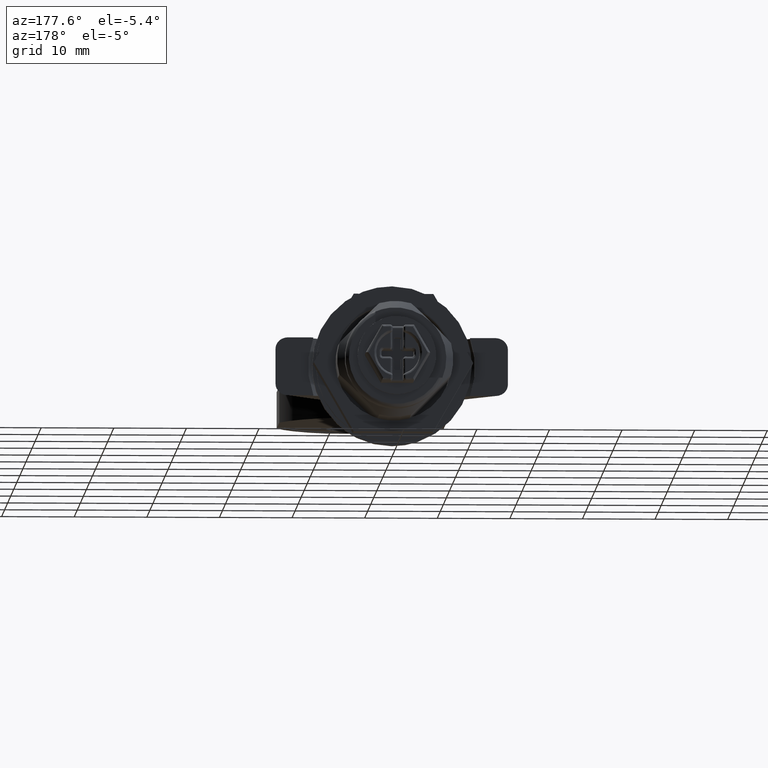
[diagram: clean part render]
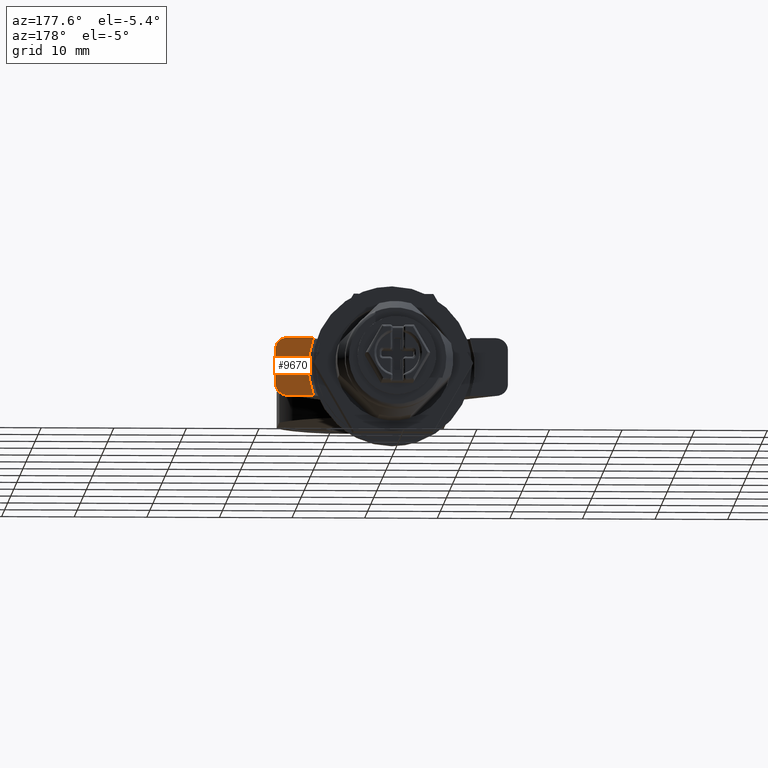
[diagram: same view with one face highlighted and labeled with its STEP entity id]
A machine part, auxiliary view. The second image highlights one B-rep face of the part: STEP entity #9670.
In plain terms, the highlighted face is a freeform B-spline surface patch.
Its self-contained STEP definition (entity closure, byte-faithful):
#7093=CARTESIAN_POINT('',(-1.000000047497460,-16.000000759959200,2.424211561412980));
#7094=VERTEX_POINT('',#7093);
#7100=CARTESIAN_POINT('',(-1.000000047497450,-14.281073286891001,4.000000189989891));
#7101=VERTEX_POINT('',#7100);
#7102=CARTESIAN_POINT('',(-1.000000047497450,-14.281073286891001,4.000000189989890));
#7103=CARTESIAN_POINT('',(-1.000000047497450,-16.000000759959288,4.000000189989886));
#7104=CARTESIAN_POINT('',(-1.000000047497460,-16.000000759959200,2.424211561412980));
#7112=(BOUNDED_CURVE()B_SPLINE_CURVE(2,(#7102,#7103,#7104),.UNSPECIFIED.,.F.,.U.)CURVE()GEOMETRIC_REPRESENTATION_ITEM()QUASI_UNIFORM_CURVE()RATIONAL_B_SPLINE_CURVE((1.0,0.712708436266329,1.0))REPRESENTATION_ITEM(''));
#7113=EDGE_CURVE('',#7101,#7094,#7112,.T.);
#8514=CARTESIAN_POINT('',(-1.000000047497484,-16.000000759959200,-2.424211561412780));
#8515=VERTEX_POINT('',#8514);
#8516=CARTESIAN_POINT('',(-1.000000047497450,-14.281073286891001,-4.000000189989690));
#8517=VERTEX_POINT('',#8516);
#8518=CARTESIAN_POINT('',(-1.000000047497484,-16.000000759959200,-2.424211561412780));
#8519=CARTESIAN_POINT('',(-1.000000047497494,-16.000000759959025,-4.000000189989668));
#8520=CARTESIAN_POINT('',(-1.000000047497494,-14.281073286891001,-4.000000189989694));
#8528=(BOUNDED_CURVE()B_SPLINE_CURVE(2,(#8518,#8519,#8520),.UNSPECIFIED.,.F.,.U.)CURVE()GEOMETRIC_REPRESENTATION_ITEM()QUASI_UNIFORM_CURVE()RATIONAL_B_SPLINE_CURVE((1.0,0.712708436266381,1.0))REPRESENTATION_ITEM(''));
#8529=EDGE_CURVE('',#8515,#8517,#8528,.T.);
#9350=CARTESIAN_POINT('',(-0.999999381216733,-10.781927760442439,-4.000000186597121));
#9351=VERTEX_POINT('',#9350);
#9352=CARTESIAN_POINT('',(-1.000000047497450,-10.781927769586980,4.000000189989891));
#9353=VERTEX_POINT('',#9352);
#9354=CARTESIAN_POINT('',(-0.999999381216733,-10.781927760442439,-4.000000186597121));
#9355=CARTESIAN_POINT('',(-0.999999494215917,-11.033652030168730,-3.321742778563731));
#9356=CARTESIAN_POINT('',(-0.999999653885688,-11.331198621703050,-2.206627063209740));
#9357=CARTESIAN_POINT('',(-0.999999841987442,-11.524779451016361,-0.469892087798544));
#9358=CARTESIAN_POINT('',(-0.999999999071264,-11.480402334749019,1.535823473718870));
#9359=CARTESIAN_POINT('',(-1.000000047555704,-11.122614356313131,3.082385030243267));
#9360=CARTESIAN_POINT('',(-1.000000047497450,-10.781927769586980,4.000000189989891));
#9361=B_SPLINE_CURVE_WITH_KNOTS('',3,(#9354,#9355,#9356,#9357,#9358,#9359,#9360),.UNSPECIFIED.,.F.,.U.,(4,1,1,1,4),(4.686227E-009,2.170376469538209,3.447072063383994,5.234428724594095,8.170824788036057),.UNSPECIFIED.);
#9362=EDGE_CURVE('',#9351,#9353,#9361,.T.);
#9640=CARTESIAN_POINT('',(-1.000000047497484,-16.000000759959200,-2.424211561412780));
#9641=CARTESIAN_POINT('',(-1.000000047497460,-16.000000759959200,2.424211561412980));
#9642=QUASI_UNIFORM_CURVE('',1,(#9640,#9641),.UNSPECIFIED.,.F.,.U.);
#9643=EDGE_CURVE('',#8515,#7094,#9642,.T.);
#9649=CARTESIAN_POINT('',(-1.000000047497450,-16.260642693792231,-4.399600014685936));
#9650=CARTESIAN_POINT('',(-1.000000047497450,-16.260642693792231,4.399599800109406));
#9651=CARTESIAN_POINT('',(-1.000000047497450,-10.521285313424119,-4.399600014685936));
#9652=CARTESIAN_POINT('',(-1.000000047497450,-10.521285313424119,4.399599800109406));
#9653=B_SPLINE_SURFACE_WITH_KNOTS('',1,1,((#9649,#9651),(#9650,#9652)),.UNSPECIFIED.,.F.,.F.,.U.,(2,2),(2,2),(0.0,8.799199814795340),(0.0,5.739357380368107),.UNSPECIFIED.);
#9654=ORIENTED_EDGE('',*,*,#9643,.F.);
#9655=ORIENTED_EDGE('',*,*,#8529,.T.);
#9656=CARTESIAN_POINT('',(-0.999999381216733,-10.781927760442439,-4.000000186597121));
#9657=CARTESIAN_POINT('',(-1.000000047497450,-14.281073286891001,-4.000000189989690));
#9658=QUASI_UNIFORM_CURVE('',1,(#9656,#9657),.UNSPECIFIED.,.F.,.U.);
#9659=EDGE_CURVE('',#9351,#8517,#9658,.T.);
#9660=ORIENTED_EDGE('',*,*,#9659,.F.);
#9661=ORIENTED_EDGE('',*,*,#9362,.T.);
#9662=CARTESIAN_POINT('',(-1.000000047497450,-14.281073286891001,4.000000189989891));
#9663=CARTESIAN_POINT('',(-1.000000047497450,-10.781927769586980,4.000000189989891));
#9664=QUASI_UNIFORM_CURVE('',1,(#9662,#9663),.UNSPECIFIED.,.F.,.U.);
#9665=EDGE_CURVE('',#7101,#9353,#9664,.T.);
#9666=ORIENTED_EDGE('',*,*,#9665,.F.);
#9667=ORIENTED_EDGE('',*,*,#7113,.T.);
#9668=EDGE_LOOP('',(#9654,#9655,#9660,#9661,#9666,#9667));
#9669=FACE_OUTER_BOUND('',#9668,.T.);
#9670=ADVANCED_FACE('',(#9669),#9653,.F.);